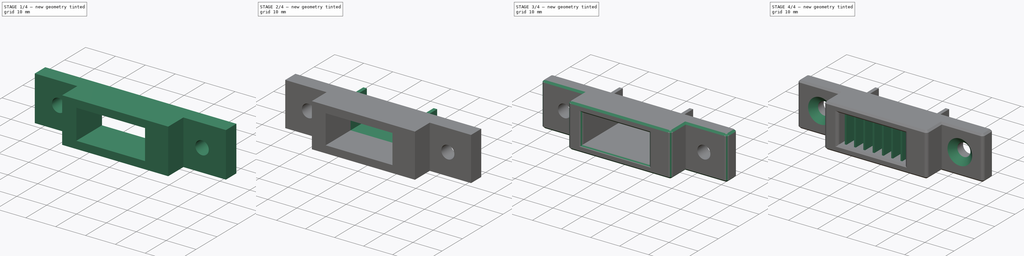
[diagram: build sequence overview — one tinted view per stage of 4, left to right]
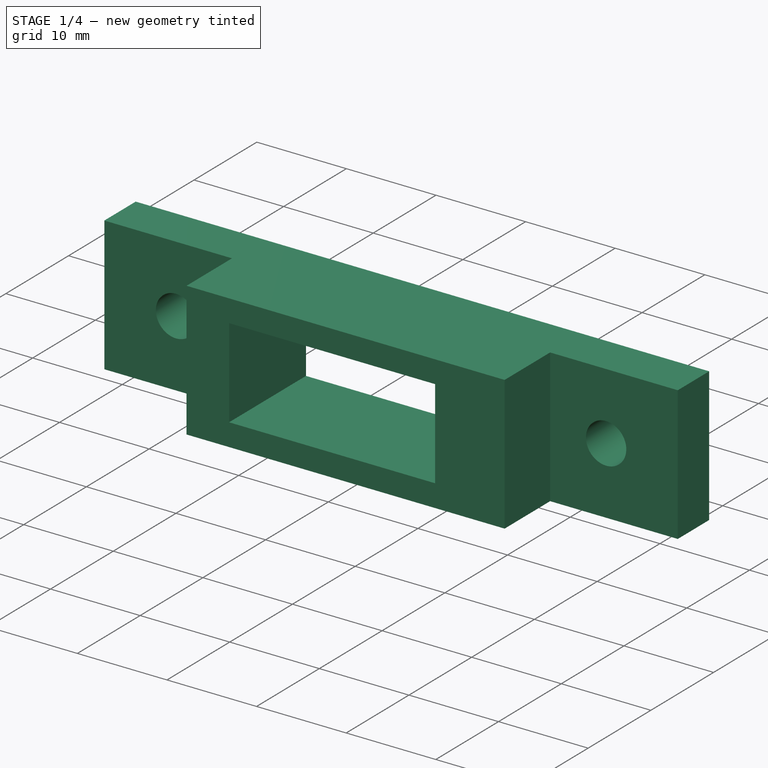
[diagram: stage 1 of 4 — iso view after this stage's code; geometry added in this stage tinted green]
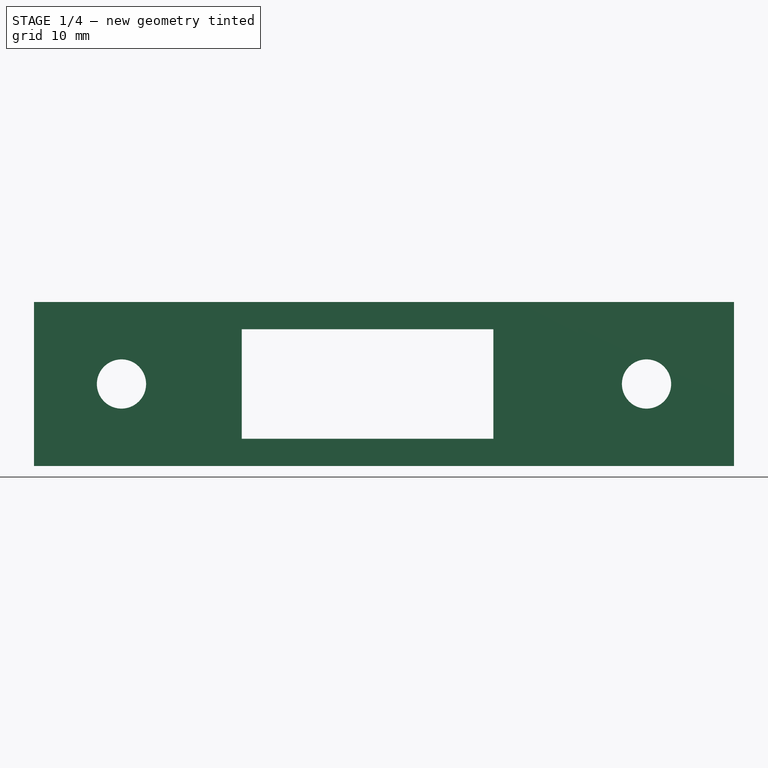
[diagram: stage 1 of 4 — front view after this stage's code; geometry added in this stage tinted green]
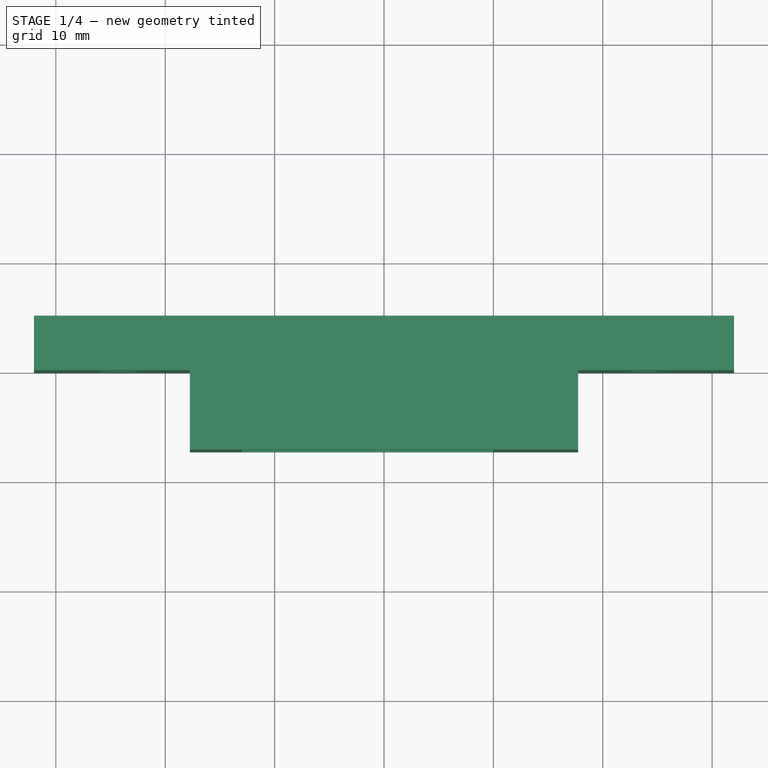
[diagram: stage 1 of 4 — top view after this stage's code; geometry added in this stage tinted green]
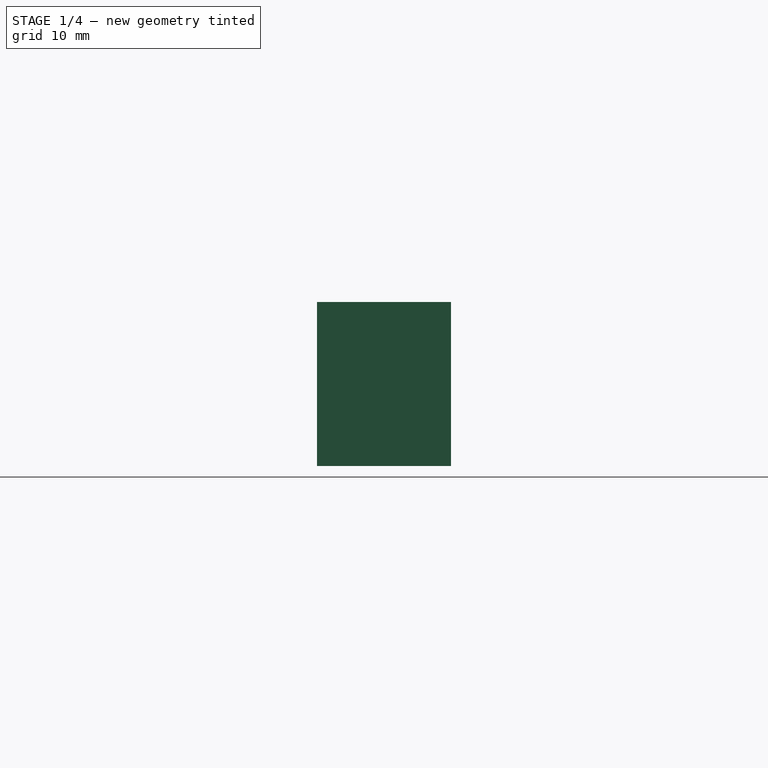
[diagram: stage 1 of 4 — right view after this stage's code; geometry added in this stage tinted green]
FCSTD DOCUMENT  (FreeCAD 1.2R20260526 (Git shallow))
Label: Latch Passthru
License: All rights reserved
LicenseURL: https://en.wikipedia.org/wiki/All_rights_reserved
objects: Sketcher::SketchObject×6, PartDesign::Pad×4, PartDesign::Chamfer×3, PartDesign::Pocket×2, App::Point×1, PartDesign::Fillet×1, PartDesign::LinearPattern×1, PartDesign::Body×1
note: 45 computed .brp shape members not serialized (recipe doc carries the construction recipe); baked Part::Feature solids carry a one-line shape summary decoded from their .brp

FEATURE [App::Point] Origin001  label="Origin-Point"
  Role = Origin
FEATURE [Sketcher::SketchObject] Sketch
  ArcFitTolerance = 1e-06
  AttachmentSupport = -> [Origin]
  ExternalTypes = [0]
  FullyConstrained = true
  MakeInternals = false
  MapMode = 2
  sketch-geometry (8):
    g0: LineSegment StartX=-32 StartY=5 StartZ=0 EndX=32 EndY=5 EndZ=0
    g1: LineSegment StartX=32 StartY=5 StartZ=0 EndX=32 EndY=0 EndZ=0
    g2: LineSegment StartX=32 StartY=0 StartZ=0 EndX=17.75 EndY=0 EndZ=0
    g3: LineSegment StartX=17.75 StartY=0 StartZ=0 EndX=17.75 EndY=-7.25 EndZ=0
    g4: LineSegment StartX=17.75 StartY=-7.25 StartZ=0 EndX=-17.75 EndY=-7.25 EndZ=0
    g5: LineSegment StartX=-17.75 StartY=-7.25 StartZ=0 EndX=-17.75 EndY=0 EndZ=0
    g6: LineSegment StartX=-17.75 StartY=0 StartZ=0 EndX=-32 EndY=0 EndZ=0
    g7: LineSegment StartX=-32 StartY=0 StartZ=0 EndX=-32 EndY=5 EndZ=0
  constraints (22):
    c: Coincident(g0,g1)
    c: Vertical(g1)
    c: Coincident(g1,g2)
    c: Horizontal(g2)
    c: Coincident(g2,g3)
    c: Coincident(g3,g4)
    c: Coincident(g4,g5)
    c: Vertical(g5)
    c: Coincident(g5,g6)
    c: Horizontal(g6)
    c: Coincident(g6,g7)
    c: Coincident(g7,g0)
    c: Vertical(g7)
    c: Horizontal(g4)
    c: Symmetric(g5,g2,g-2)
    c: Vertical(g3)
    c: Symmetric(g0,g0,g-2)
    c: DistanceX(g4,g4) = 35.5
    c: DistanceX(g0,g0) = 64
    c: DistanceY(g3,g3) = 7.25
    c: DistanceY(g1,g1) = 5
    c: PointOnObject(g6,g-1)
FEATURE [PartDesign::Pad] Pad
  Direction = (0,0,1)
  FuzzyTolerance = 0
  Length = 15
  Length2 = 10
  Profile = -> Sketch
  ReferenceAxis = -> Sketch [N_Axis]
  Refine = true
  SideType = 2
  Suppressed = false
  Type = 0
  Type2 = 0
FEATURE [Sketcher::SketchObject] Sketch001
  ArcFitTolerance = 1e-06
  AttachmentSupport = -> [Pad]
  ExternalGeometry = -> [Pad]
  ExternalTypes = [0]
  FullyConstrained = true
  MakeInternals = false
  MapMode = 5
  Placement = pos=(0,0,0) rot=(1,0,0;1.5708rad)
  sketch-geometry (2):
    g0: Circle CenterX=-24 CenterY=0 CenterZ=0 NormalX=0 NormalY=0 NormalZ=1 AngleXU=0 Radius=2.25
    g1: Circle CenterX=24 CenterY=0 CenterZ=0 NormalX=0 NormalY=0 NormalZ=1 AngleXU=0 Radius=2.25
  constraints (5):
    c: PointOnObject(g0,g-1)
    c: Equal(g0,g1)
    c: Diameter(g0) = 4.5
    c: Symmetric(g0,g1,g-2)
    c: DistanceX(g0,g1) = 48
FEATURE [PartDesign::Pocket] Pocket
  BaseFeature = -> Pad
  Direction = (0,1,0)
  FuzzyTolerance = 0
  Length = 5
  Length2 = 5
  Profile = -> Sketch001
  ReferenceAxis = -> Sketch001 [N_Axis]
  Refine = true
  SideType = 0
  Suppressed = false
  Type = 0
  Type2 = 0
FEATURE [Sketcher::SketchObject] Sketch002
  ArcFitTolerance = 1e-06
  AttachmentSupport = -> [Pocket]
  ExternalGeometry = -> [Pocket]
  ExternalTypes = [0]
  FullyConstrained = true
  MakeInternals = false
  MapMode = 5
  Placement = pos=(0,-7.25,0) rot=(1,0,0;1.5708rad)
  sketch-geometry (7):
    g0: LineSegment [constr] StartX=-10 StartY=5 StartZ=0 EndX=-10 EndY=-5 EndZ=0
    g1: LineSegment StartX=-10 StartY=-5 StartZ=0 EndX=10 EndY=-5 EndZ=0
    g2: LineSegment StartX=10 StartY=-5 StartZ=0 EndX=10 EndY=5 EndZ=0
    g3: LineSegment StartX=10 StartY=5 StartZ=0 EndX=-10 EndY=5 EndZ=0
    g4: LineSegment StartX=-10 StartY=5 StartZ=0 EndX=-13 EndY=5 EndZ=0
    g5: LineSegment StartX=-13 StartY=5 StartZ=0 EndX=-13 EndY=-5 EndZ=0
    g6: LineSegment StartX=-13 StartY=-5 StartZ=0 EndX=-10 EndY=-5 EndZ=0
  constraints (19):
    c: Coincident(g0,g1)
    c: Coincident(g1,g2)
    c: Coincident(g2,g3)
    c: Coincident(g3,g0)
    c: Vertical(g2)
    c: Horizontal(g1)
    c: Horizontal(g3)
    c: DistanceY(g2,g2) = 10
    c: Symmetric(g0,g2,g-1)
    c: Vertical(g0)
    c: DistanceX(g1,g1) = 20
    c: Coincident(g4,g0)
    c: Horizontal(g4)
    c: Coincident(g4,g5)
    c: Vertical(g5)
    c: Coincident(g5,g6)
    c: Coincident(g6,g0)
    c: Horizontal(g6)
    c: DistanceX(g6,g6) = 3
FEATURE [PartDesign::Pocket] Pocket001
  BaseFeature = -> Pocket
  Direction = (0,1,-2e-16)
  FuzzyTolerance = 0
  Length = 5
  Length2 = 5
  Profile = -> Sketch002
  ReferenceAxis = -> Sketch002 [N_Axis]
  Refine = true
  SideType = 0
  Suppressed = false
  Type = 1
  Type2 = 0
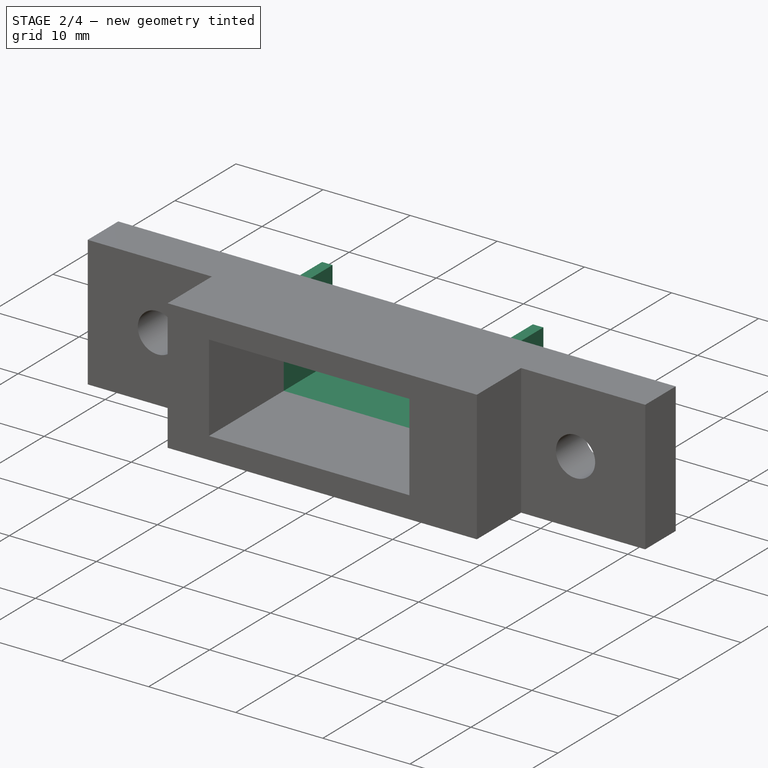
[diagram: stage 2 of 4 — iso view after this stage's code; geometry added in this stage tinted green]
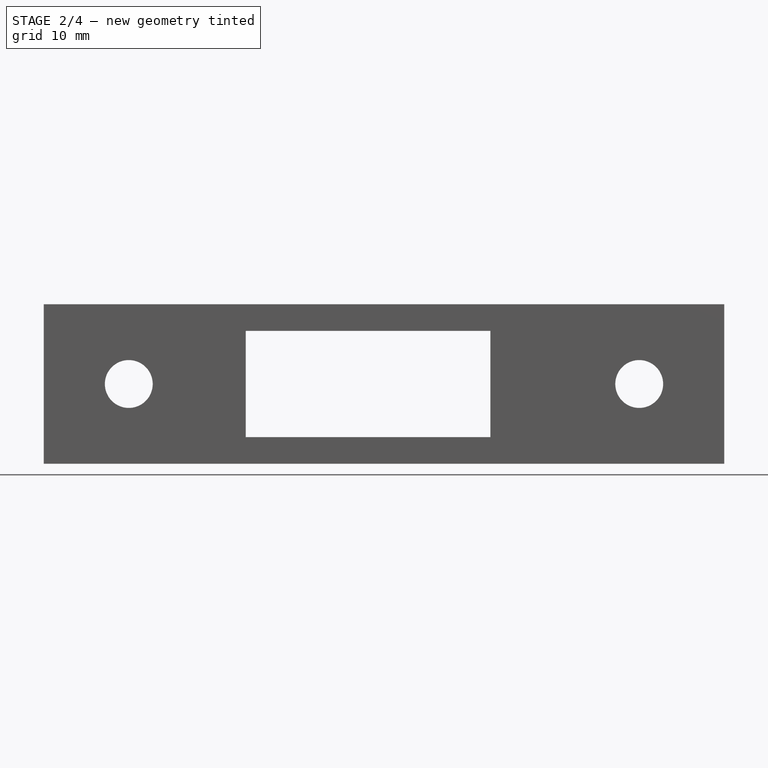
[diagram: stage 2 of 4 — front view after this stage's code; geometry added in this stage tinted green]
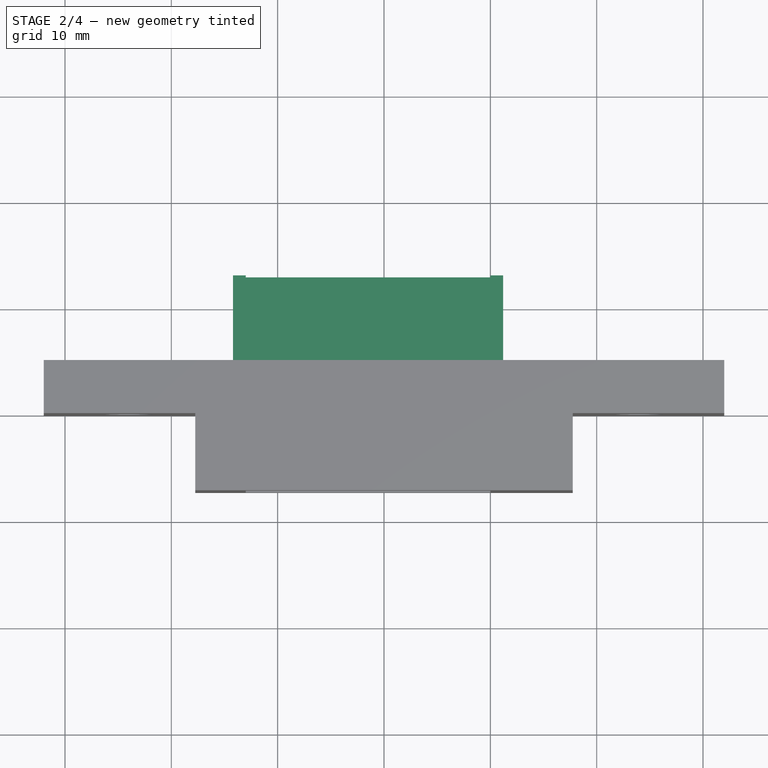
[diagram: stage 2 of 4 — top view after this stage's code; geometry added in this stage tinted green]
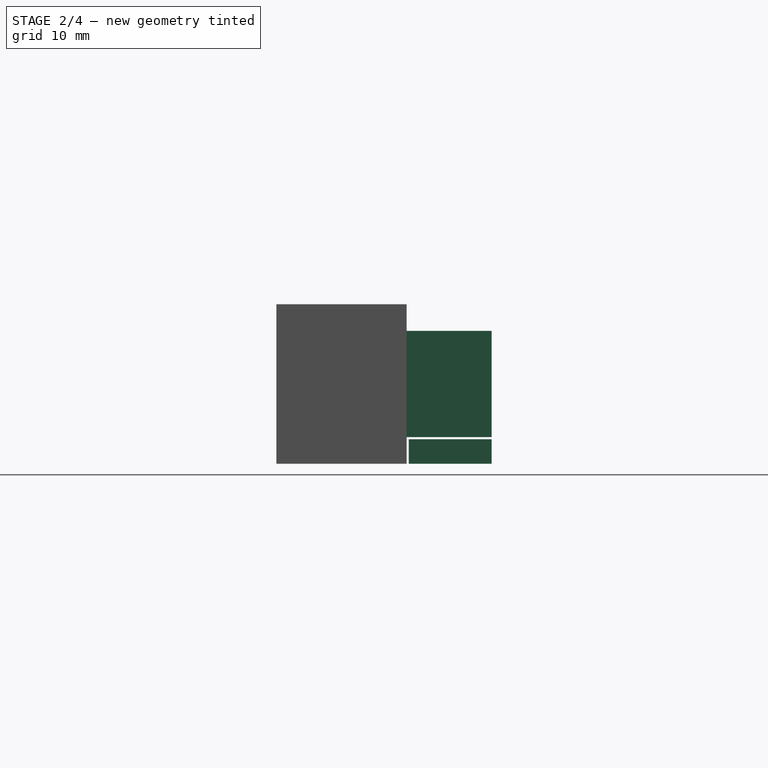
[diagram: stage 2 of 4 — right view after this stage's code; geometry added in this stage tinted green]
FEATURE [Sketcher::SketchObject] Sketch003
  ArcFitTolerance = 1e-06
  AttachmentSupport = -> [Pocket001]
  ExternalGeometry = -> [Pocket001]
  ExternalTypes = [0,0]
  FullyConstrained = true
  MakeInternals = false
  MapMode = 5
  Placement = pos=(0,5,0) rot=(0,0.707107,0.707107;3.14159rad)
  sketch-geometry (8):
    g0: LineSegment StartX=13 StartY=5 StartZ=0 EndX=13 EndY=-5 EndZ=0
    g1: LineSegment StartX=13 StartY=-5 StartZ=0 EndX=14.2 EndY=-5 EndZ=0
    g2: LineSegment StartX=14.2 StartY=-5 StartZ=0 EndX=14.2 EndY=5 EndZ=0
    g3: LineSegment StartX=14.2 StartY=5 StartZ=0 EndX=13 EndY=5 EndZ=0
    g4: LineSegment StartX=-10 StartY=5 StartZ=0 EndX=-11.2 EndY=5 EndZ=0
    g5: LineSegment StartX=-11.2 StartY=5 StartZ=0 EndX=-11.2 EndY=-5 EndZ=0
    g6: LineSegment StartX=-11.2 StartY=-5 StartZ=0 EndX=-10 EndY=-5 EndZ=0
    g7: LineSegment StartX=-10 StartY=-5 StartZ=0 EndX=-10 EndY=5 EndZ=0
  constraints (20):
    c: Coincident(g0,g1)
    c: Coincident(g1,g2)
    c: Coincident(g2,g3)
    c: Coincident(g3,g0)
    c: Vertical(g2)
    c: Horizontal(g1)
    c: Horizontal(g3)
    c: Coincident(g0,g-3)
    c: Coincident(g4,g5)
    c: Coincident(g5,g6)
    c: Coincident(g6,g7)
    c: Coincident(g7,g4)
    c: Horizontal(g4)
    c: Horizontal(g6)
    c: Vertical(g5)
    c: Coincident(g4,g-4)
    c: Coincident(g6,g-4)
    c: Coincident(g0,g-3)
    c: Equal(g1,g6)
    c: DistanceX(g1,g1) = 1.2
FEATURE [PartDesign::Pad] Pad001
  BaseFeature = -> Pocket001
  Direction = (0,1,-2e-16)
  FuzzyTolerance = 0
  Length = 8
  Length2 = 10
  Profile = -> Sketch003
  ReferenceAxis = -> Sketch003 [N_Axis]
  Refine = true
  SideType = 0
  Suppressed = false
  Type = 0
  Type2 = 0
FEATURE [Sketcher::SketchObject] Sketch004
  ArcFitTolerance = 1e-06
  AttachmentOffset = pos=(0,0,0.2) rot=(0,0,1;0rad)
  AttachmentSupport = -> [Pad001]
  ExternalGeometry = -> [Pad001]
  ExternalTypes = [0,0,0]
  FullyConstrained = false
  MakeInternals = false
  MapMode = 5
  Placement = pos=(0,-1.1e-15,-5.2) rot=(1,0,0;3.14159rad)
  sketch-geometry (4):
    g0: LineSegment StartX=-14 StartY=-5.2 StartZ=0 EndX=-14 EndY=-13 EndZ=0
    g1: LineSegment StartX=-14 StartY=-13 StartZ=0 EndX=11 EndY=-13 EndZ=0
    g2: LineSegment StartX=11 StartY=-5.2 StartZ=0 EndX=-14 EndY=-5.2 EndZ=0
    g3: LineSegment StartX=11 StartY=-13 StartZ=0 EndX=11 EndY=-5.2 EndZ=0
  constraints (10):
    c: Coincident(g0,g1)
    c: Coincident(g2,g0)
    c: Vertical(g0)
    c: Horizontal(g1)
    c: Horizontal(g2)
    c: DistanceY(g2,g-4) = 0.2
    c: Vertical(g3)
    c: Coincident(g3,g1)
    c: Coincident(g2,g3)
    c: DistanceX(g1,g-5) = 0.2
FEATURE [PartDesign::Pad] Pad002
  BaseFeature = -> Pad001
  Direction = (0,0,-1)
  FuzzyTolerance = 0
  Length = 10
  Length2 = 10
  Profile = -> Sketch004
  ReferenceAxis = -> Sketch004 [N_Axis]
  Refine = true
  SideType = 0
  Suppressed = false
  Type = 3
  Type2 = 0
  UpToFace = -> Pad001 [Face3]
FEATURE [PartDesign::Chamfer] Chamfer
  Angle = 45
  Base = -> Pad002 [Edge5,Edge6]
  BaseFeature = -> Pad002
  ChamferType = 0
  FlipDirection = false
  FuzzyTolerance = 0
  Refine = true
  Size = 0.2
  Size2 = 1
  SupportTransform = false
  Suppressed = false
  UseAllEdges = false
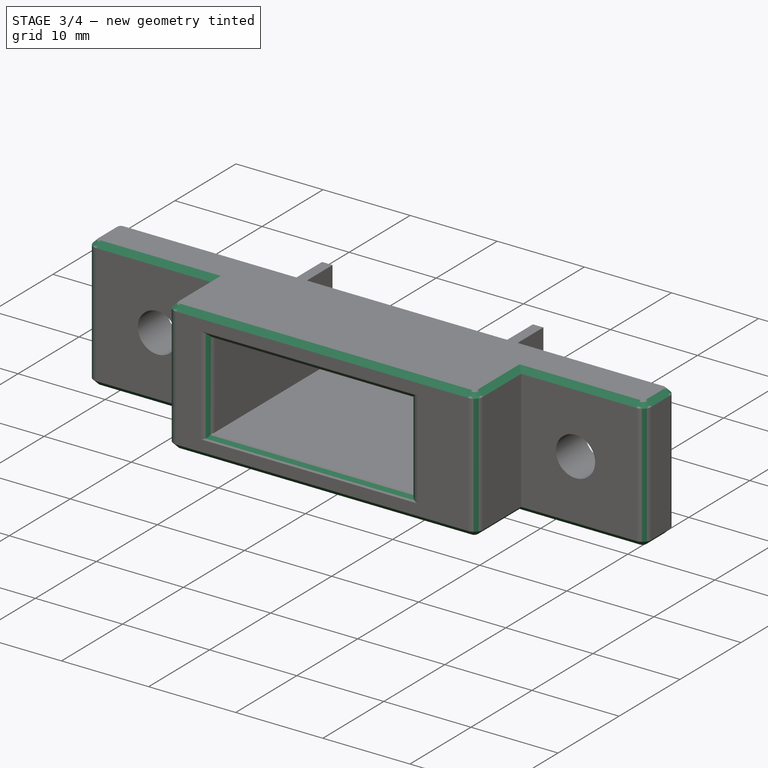
[diagram: stage 3 of 4 — iso view after this stage's code; geometry added in this stage tinted green]
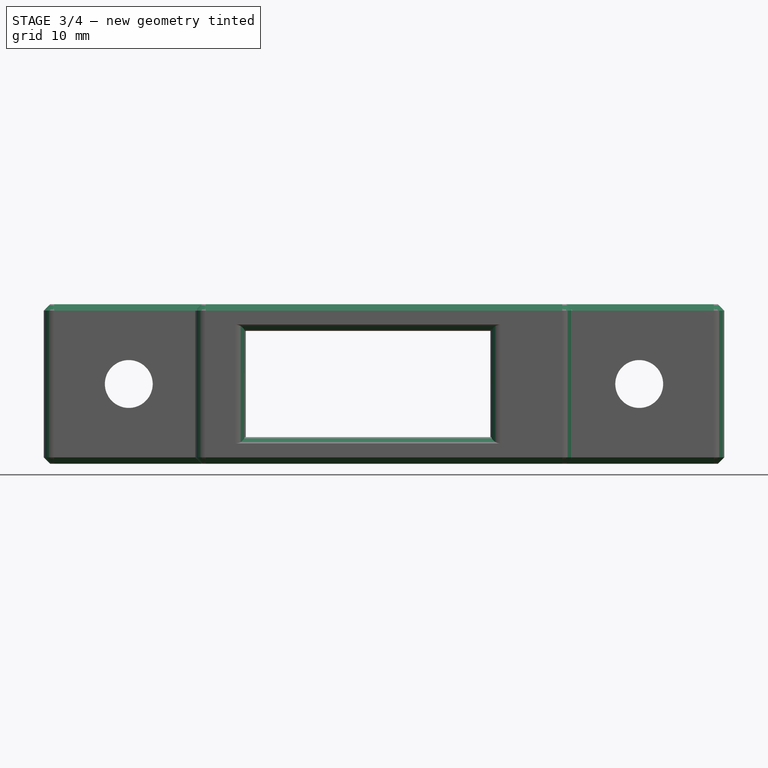
[diagram: stage 3 of 4 — front view after this stage's code; geometry added in this stage tinted green]
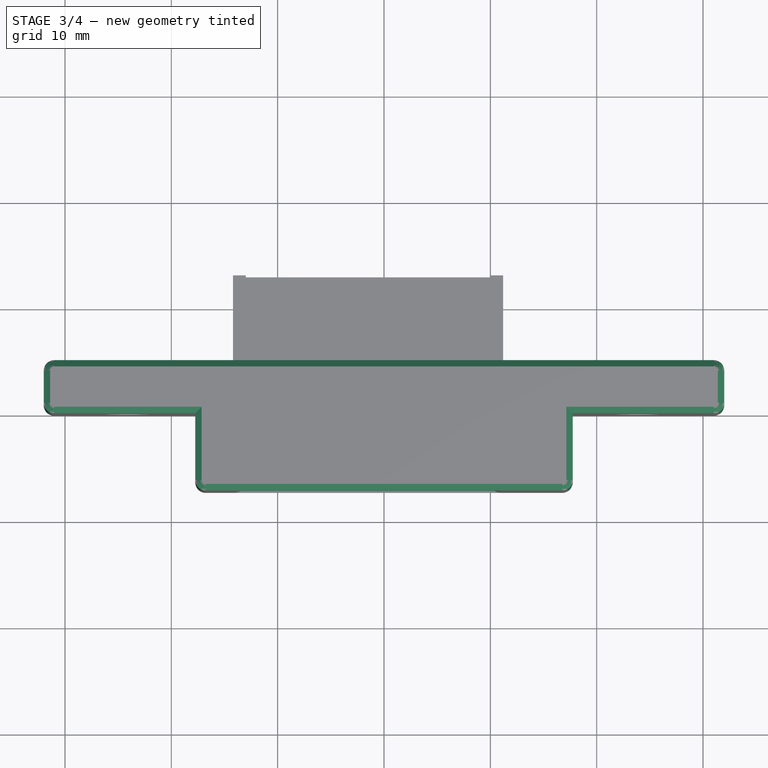
[diagram: stage 3 of 4 — top view after this stage's code; geometry added in this stage tinted green]
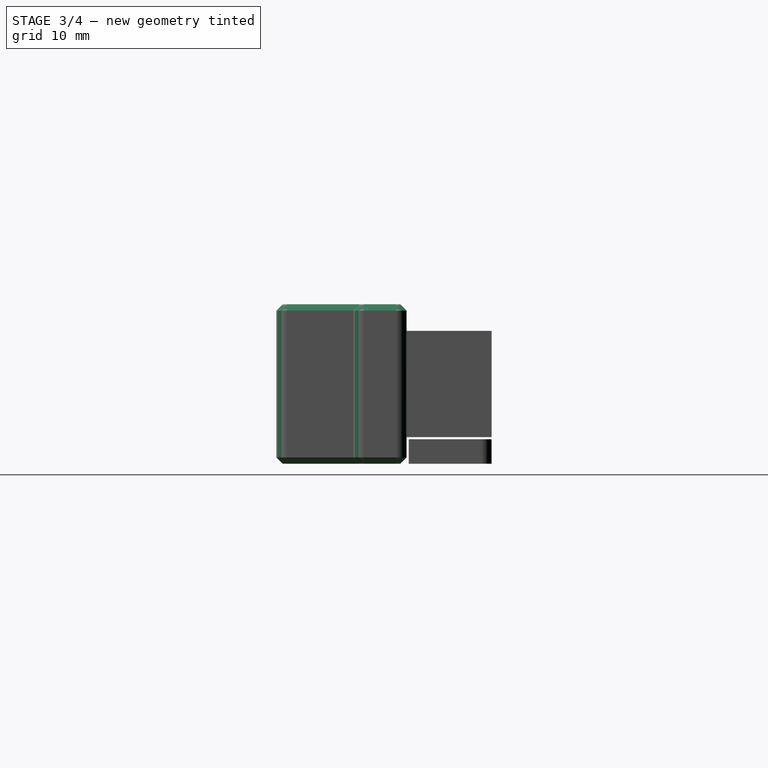
[diagram: stage 3 of 4 — right view after this stage's code; geometry added in this stage tinted green]
FEATURE [PartDesign::Fillet] Fillet
  Base = -> Chamfer [Edge68,Edge2,Edge17,Edge61,Edge5,Edge32,Edge60,Edge74,Edge62,Edge63]
  BaseFeature = -> Chamfer
  FuzzyTolerance = 0
  Radius = 1
  Refine = true
  SupportTransform = false
  Suppressed = false
  UseAllEdges = false
FEATURE [PartDesign::Chamfer] Chamfer001
  Angle = 45
  Base = -> Fillet [Face10,Edge88,Edge74,Face13]
  BaseFeature = -> Fillet
  ChamferType = 0
  FlipDirection = false
  FuzzyTolerance = 0
  Refine = true
  Size = 0.6
  Size2 = 1
  SupportTransform = false
  Suppressed = false
  UseAllEdges = false
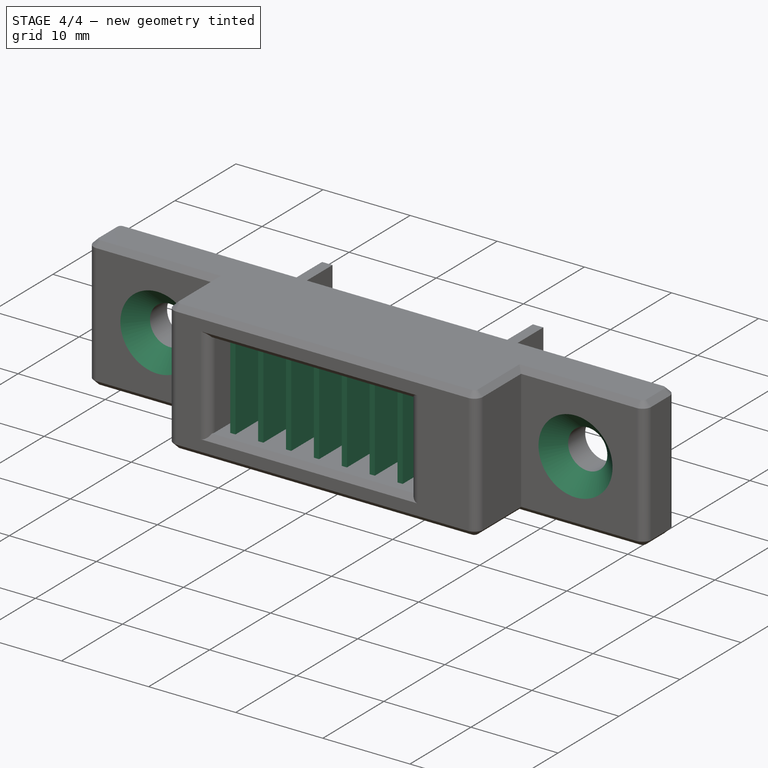
[diagram: stage 4 of 4 — iso view after this stage's code; geometry added in this stage tinted green]
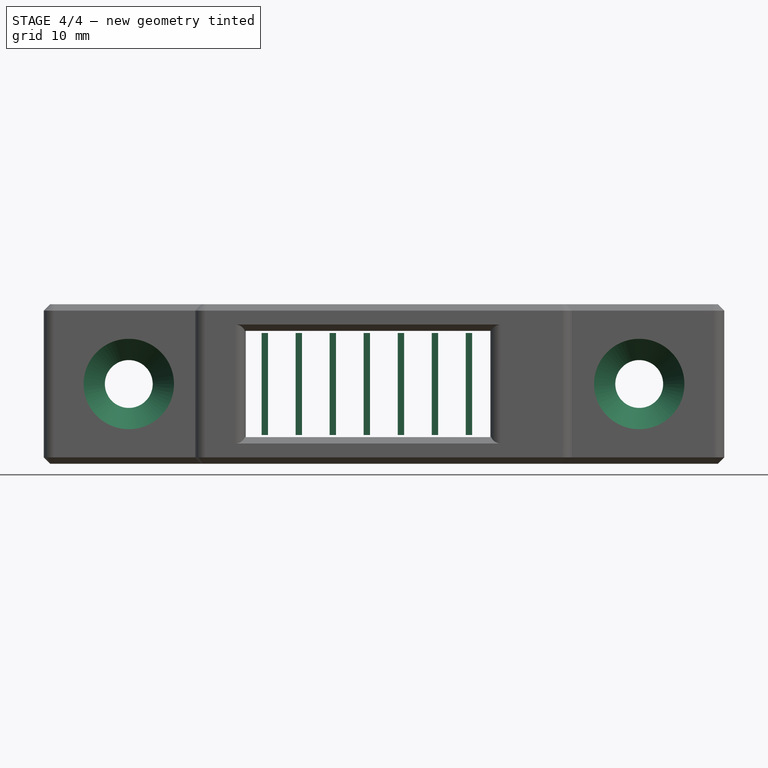
[diagram: stage 4 of 4 — front view after this stage's code; geometry added in this stage tinted green]
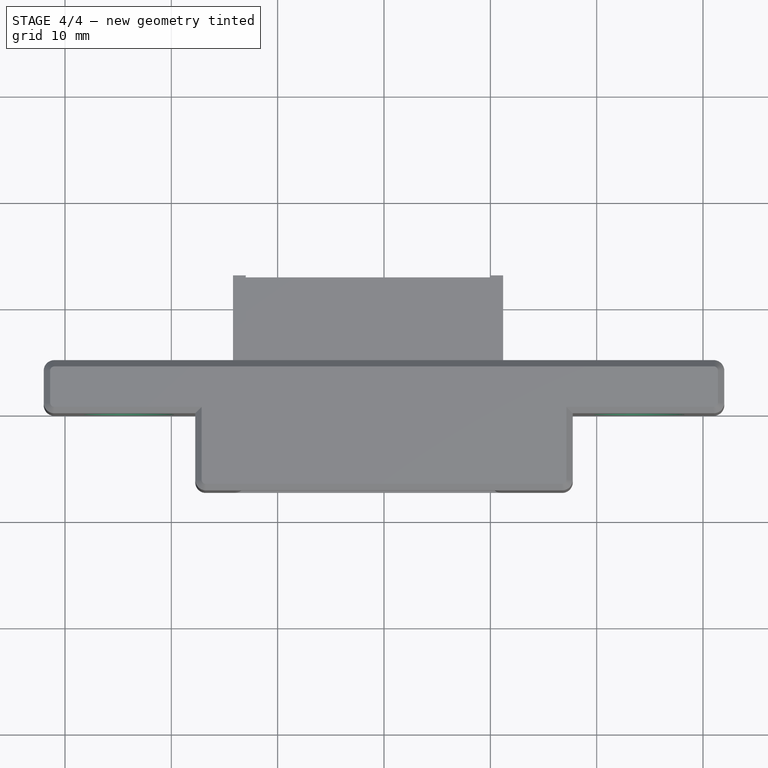
[diagram: stage 4 of 4 — top view after this stage's code; geometry added in this stage tinted green]
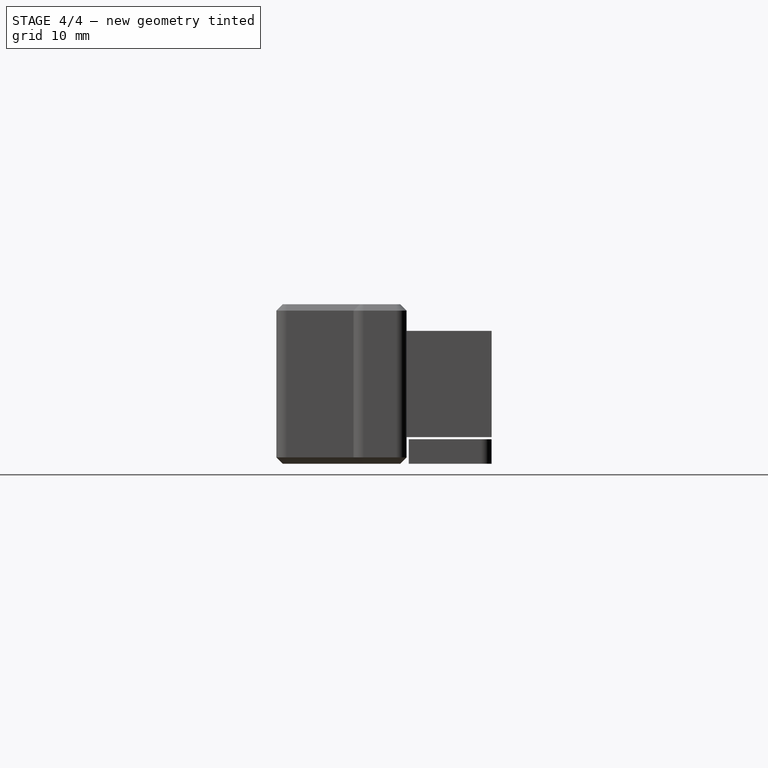
[diagram: stage 4 of 4 — right view after this stage's code; geometry added in this stage tinted green]
FEATURE [PartDesign::Chamfer] Chamfer002
  Angle = 45
  Base = -> Chamfer001 [Edge92,Edge104]
  BaseFeature = -> Chamfer001
  ChamferType = 0
  FlipDirection = false
  FuzzyTolerance = 0
  Refine = true
  Size = 2
  Size2 = 1
  SupportTransform = false
  Suppressed = false
  UseAllEdges = false
FEATURE [Sketcher::SketchObject] Sketch005
  ArcFitTolerance = 1e-06
  AttachmentOffset = pos=(0,0,0.2) rot=(0,0,1;0rad)
  AttachmentSupport = -> [Chamfer002]
  ExternalTypes = [0]
  FullyConstrained = false
  MakeInternals = false
  MapMode = 5
  Placement = pos=(0,-1.1e-15,-4.8) rot=(0,0,1;0rad)
  sketch-geometry (4):
    g0: LineSegment StartX=-11.5109 StartY=3.94644 StartZ=0 EndX=-11.5109 EndY=-5.89844 EndZ=0
    g1: LineSegment StartX=-11.5109 StartY=-5.89844 StartZ=0 EndX=-10.9109 EndY=-5.89844 EndZ=0
    g2: LineSegment StartX=-10.9109 StartY=-5.89844 StartZ=0 EndX=-10.9109 EndY=3.94644 EndZ=0
    g3: LineSegment StartX=-10.9109 StartY=3.94644 StartZ=0 EndX=-11.5109 EndY=3.94644 EndZ=0
  constraints (9):
    c: Coincident(g0,g1)
    c: Coincident(g1,g2)
    c: Coincident(g2,g3)
    c: Coincident(g3,g0)
    c: Vertical(g0)
    c: Vertical(g2)
    c: Horizontal(g1)
    c: Horizontal(g3)
    c: Distance(g0,g2) = 0.6
FEATURE [PartDesign::Pad] Pad003
  BaseFeature = -> Chamfer002
  Direction = (0,0,1)
  FuzzyTolerance = 0
  Length = 9.6
  Length2 = 10
  Profile = -> Sketch005
  ReferenceAxis = -> Sketch005 [N_Axis]
  Refine = true
  SideType = 0
  Suppressed = false
  Type = 0
  Type2 = 0
FEATURE [PartDesign::LinearPattern] LinearPattern
  BaseFeature = -> Pad003
  Direction = -> Sketch005 [H_Axis]
  Direction2 = -> Sketch005 [V_Axis]
  FuzzyTolerance = 0
  Length = 19.2
  Length2 = 100
  Mode = 1
  Mode2 = 0
  Occurrences = 7
  Occurrences2 = 1
  Offset = 3.2
  Offset2 = 100
  Originals = -> [Pad003]
  Refine = true
  Reversed2 = false
  SpacingPattern = [3.2]
  SpacingPattern2 = [0]
  Spacings = [-1,-1,-1,-1,-1,-1]
  Suppressed = false
  TransformMode = 0
FEATURE [PartDesign::Body] Body
  AllowCompound = true
  Group = -> [Sketch,Pad,Sketch001,Pocket,Sketch002,Pocket001,Sketch003,Pad001,Sketch004,Pad002,Chamfer,Fillet,Chamfer001,Chamfer002,Sketch005,Pad003,LinearPattern]
  Origin = -> Origin
  Tip = -> LinearPattern
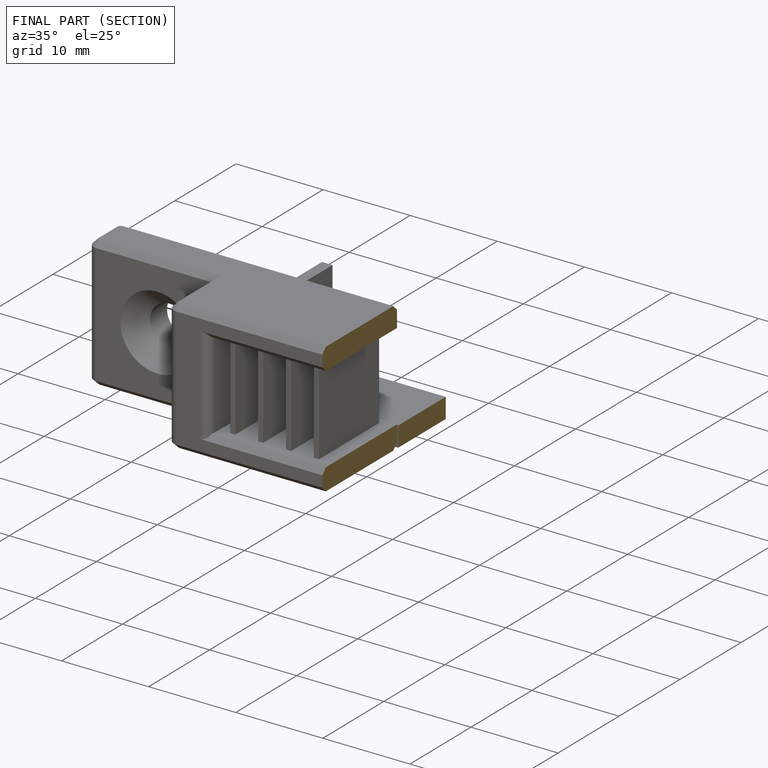
[diagram: finished part — half-section view (interior)]
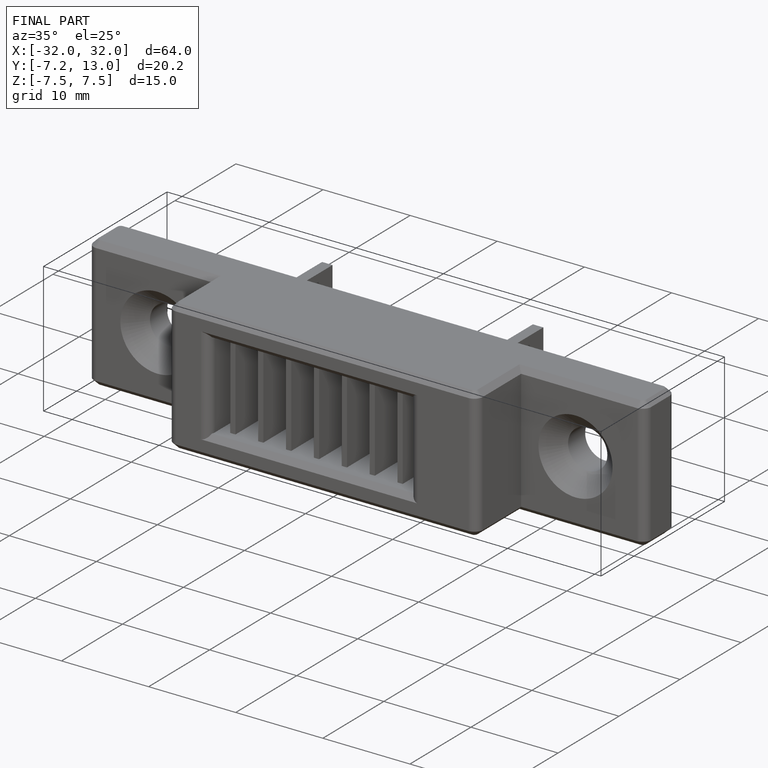
[diagram: finished part — iso view with bounding-box wireframe]
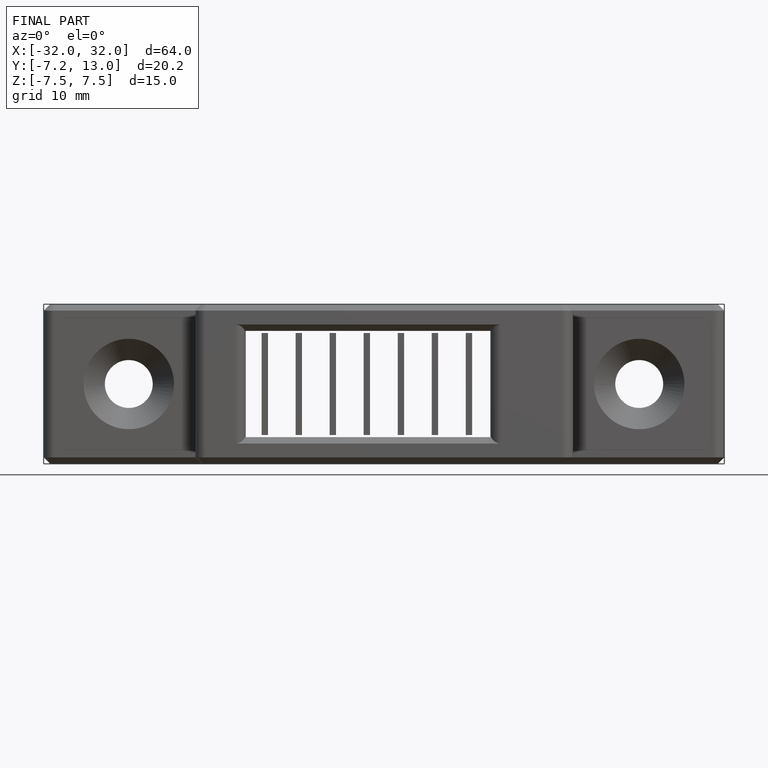
[diagram: finished part — front view with bounding-box wireframe]
